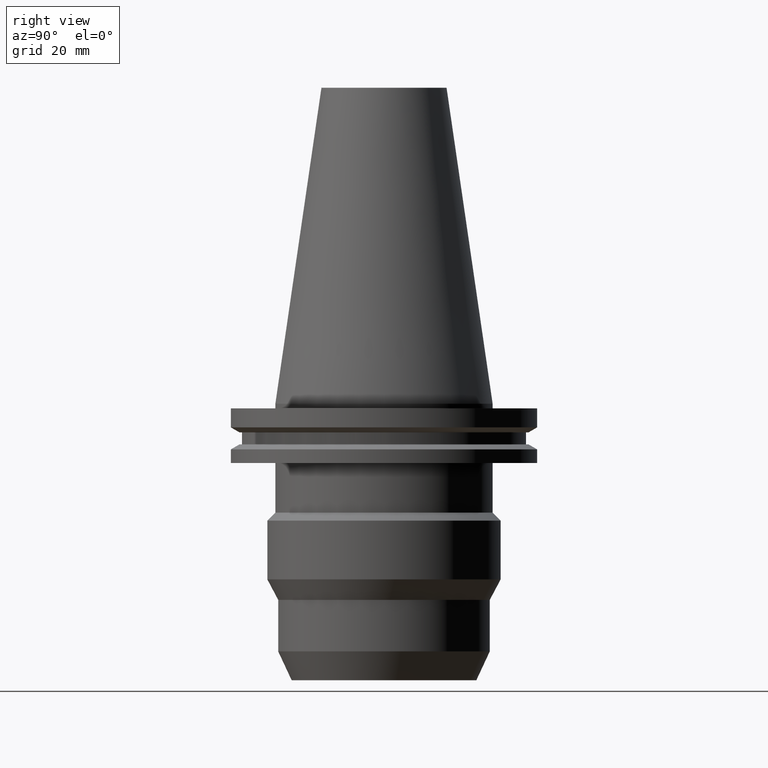
[diagram: clean part render]
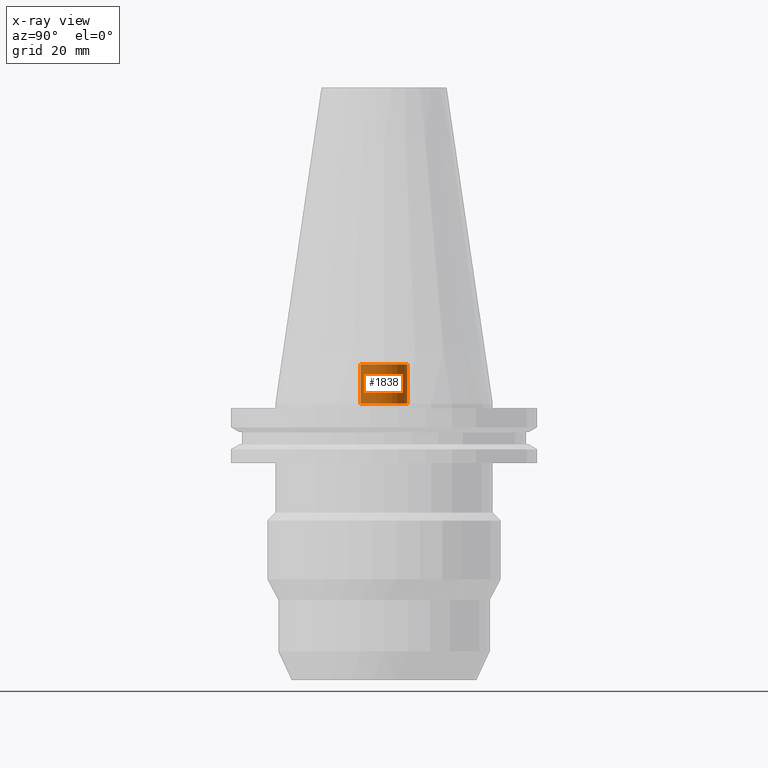
[diagram: x-ray — body ghosted, one internal face saturated and labeled with its STEP entity id]
A machine part, right view, then the same camera in x-ray: the body is ghosted and one INTERNAL B-rep face — a face not visible from any outside direction — is saturated and labeled: STEP entity #1838.
In plain terms, the highlighted cylindrical surface (edge-blend (fillet) strip) has radius 7.5 mm, axis along (0, 0, 1).
Its self-contained STEP definition (entity closure, byte-faithful):
#854=DIRECTION('',(0.E0,0.E0,1.E0));
#855=VECTOR('',#854,1.26E1);
#856=CARTESIAN_POINT('',(0.E0,7.5E0,1.278976924368E-13));
#857=LINE('',#856,#855);
#861=CARTESIAN_POINT('',(0.E0,0.E0,1.421085471520E-13));
#862=DIRECTION('',(0.E0,0.E0,1.E0));
#863=DIRECTION('',(0.E0,-1.E0,0.E0));
#864=AXIS2_PLACEMENT_3D('',#861,#862,#863);
#869=DIRECTION('',(0.E0,0.E0,1.E0));
#870=VECTOR('',#869,1.26E1);
#871=CARTESIAN_POINT('',(0.E0,-7.5E0,1.278976924368E-13));
#872=LINE('',#871,#870);
#892=CARTESIAN_POINT('',(0.E0,0.E0,1.26E1));
#893=DIRECTION('',(0.E0,0.E0,1.E0));
#894=DIRECTION('',(0.E0,-1.E0,0.E0));
#895=AXIS2_PLACEMENT_3D('',#892,#893,#894);
#1094=CARTESIAN_POINT('',(0.E0,7.5E0,1.278976924368E-13));
#1095=VERTEX_POINT('',#1094);
#1096=CARTESIAN_POINT('',(0.E0,-7.5E0,1.278976924368E-13));
#1097=VERTEX_POINT('',#1096);
#1098=CARTESIAN_POINT('',(0.E0,7.5E0,1.26E1));
#1099=VERTEX_POINT('',#1098);
#1100=CARTESIAN_POINT('',(0.E0,-7.5E0,1.26E1));
#1101=VERTEX_POINT('',#1100);
#1824=CARTESIAN_POINT('',(0.E0,0.E0,-9.8425E1));
#1825=DIRECTION('',(0.E0,0.E0,1.E0));
#1826=DIRECTION('',(0.E0,1.E0,0.E0));
#1827=AXIS2_PLACEMENT_3D('',#1824,#1825,#1826);
#1828=CYLINDRICAL_SURFACE('',#1827,7.5E0);
#1830=ORIENTED_EDGE('',*,*,#1829,.T.);
#1832=ORIENTED_EDGE('',*,*,#1831,.F.);
#1834=ORIENTED_EDGE('',*,*,#1833,.F.);
#1835=ORIENTED_EDGE('',*,*,#1817,.T.);
#1836=EDGE_LOOP('',(#1830,#1832,#1834,#1835));
#1837=FACE_OUTER_BOUND('',#1836,.F.);
#865=CIRCLE('',#864,7.5E0);
#896=CIRCLE('',#895,7.5E0);
#1817=EDGE_CURVE('',#1097,#1095,#865,.T.);
#1829=EDGE_CURVE('',#1095,#1099,#857,.T.);
#1831=EDGE_CURVE('',#1101,#1099,#896,.T.);
#1833=EDGE_CURVE('',#1097,#1101,#872,.T.);
#1838=ADVANCED_FACE('',(#1837),#1828,.F.);